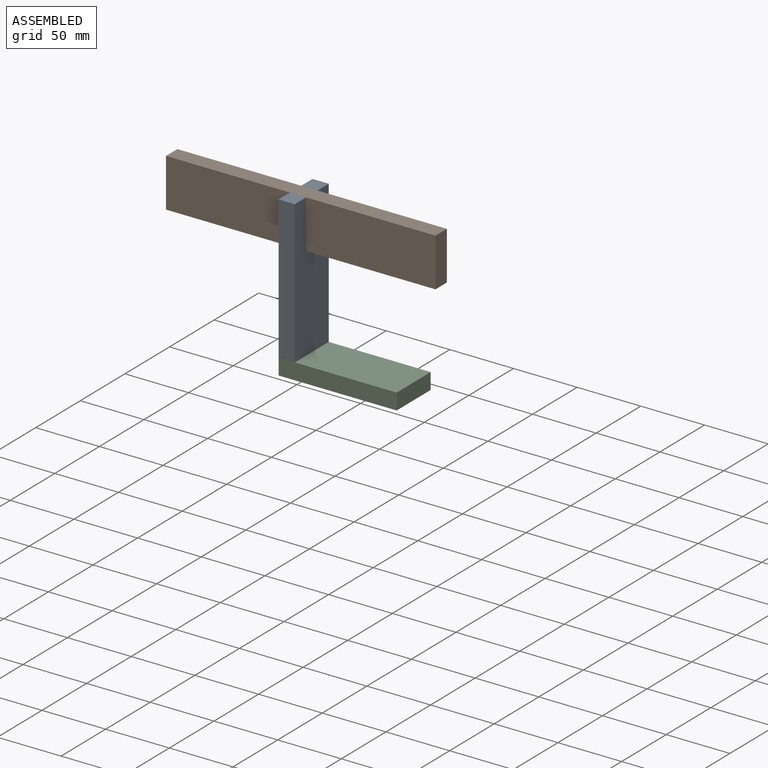
[diagram: assembled view]
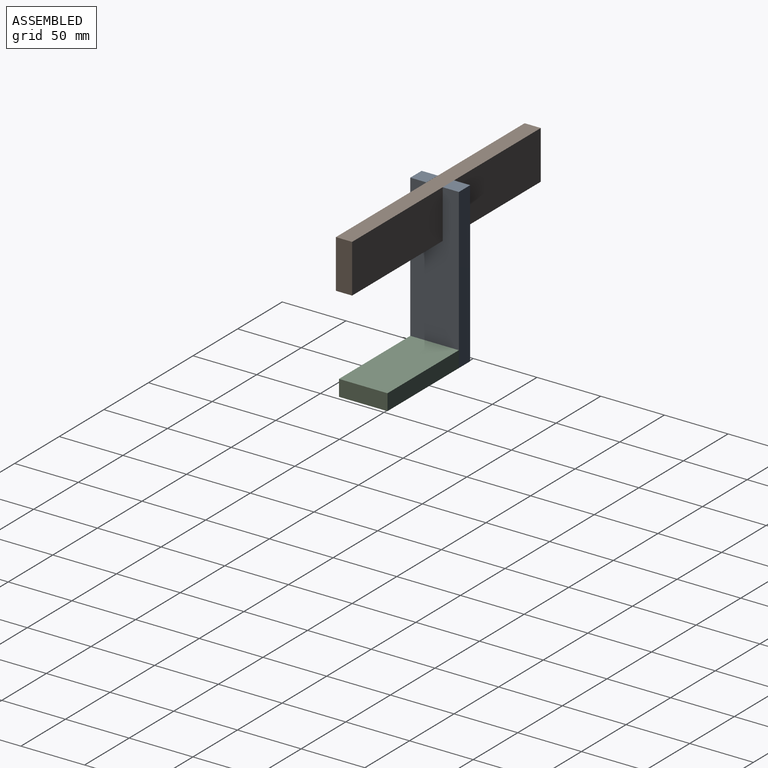
[diagram: assembled view, second angle]
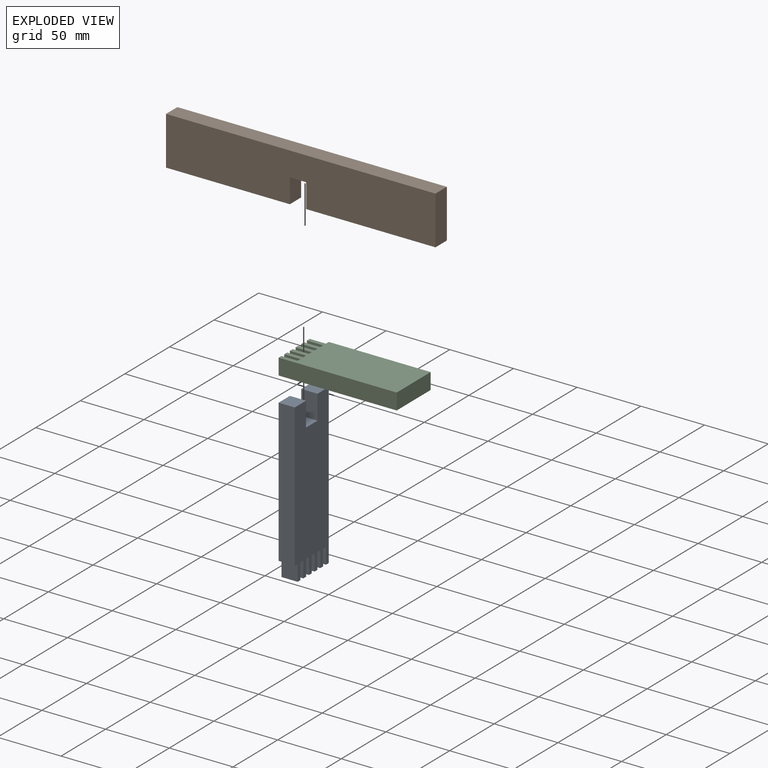
[diagram: exploded view]
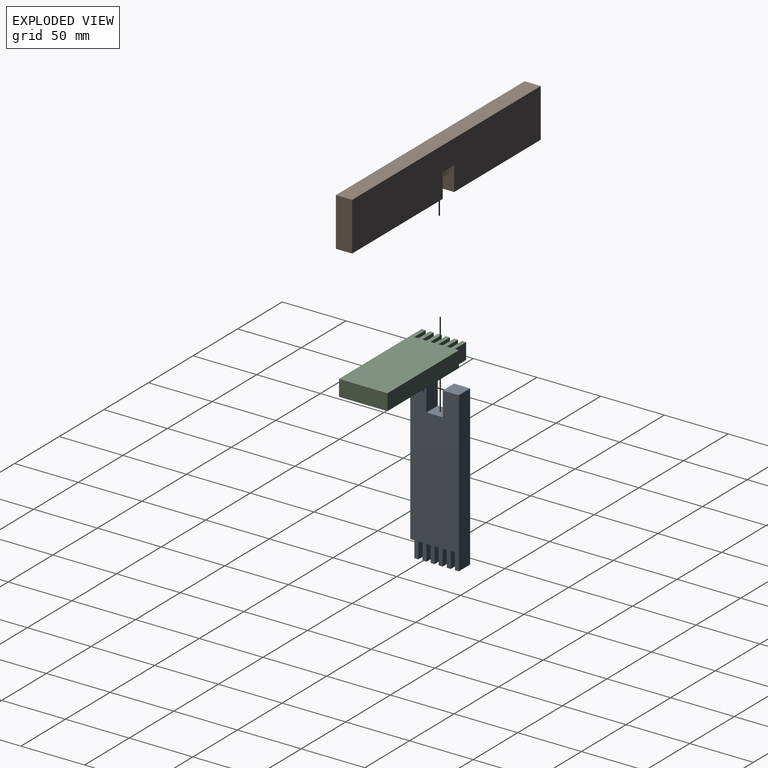
[diagram: exploded view, second angle]
ASSEMBLY  parts=3 mates=6
PART A: 32 faces, bbox 12.7x38.1x124.9 mm
  f0: plane 12.7x12.65mm, normal (0,0,1), area 160.6mm2, adj f6,f7,f8,f29
  f1: plane 12.7x3.12mm, normal (0,0,-1), area 39.7mm2, adj f7,f8,f24,f28
  f2: plane 12.7x3.12mm, normal (0,0,-1), area 39.7mm2, adj f7,f8,f21,f25
  f3: plane 12.7x3.12mm, normal (0,0,-1), area 39.7mm2, adj f7,f8,f18,f22
  f4: plane 12.7x3.12mm, normal (0,0,-1), area 39.7mm2, adj f7,f8,f15,f19
  f5: plane 12.7x3.12mm, normal (0,0,-1), area 39.7mm2, adj f7,f8,f12,f16
  f6: plane 112.24x12.7mm, normal (0,-1,0), area 1425.5mm2, adj f0,f7,f8,f27
  f7: plane 124.94x38.1mm, normal (1,0,0), area 4271.2mm2, adj f0,f1,f2,f3,f4,f5,f6,f9
  f8: plane 124.94x38.1mm, normal (-1,0,0), area 4271.2mm2, adj f0,f1,f2,f3,f4,f5,f6,f9
  f9: plane 12.7x3.12mm, normal (0,0,-1), area 39.7mm2, adj f7,f8,f10,f13
  f10: plane 124.94x12.7mm, normal (0,1,0), area 1586.8mm2, adj f7,f8,f9,f11
  f11: plane 12.7x12.67mm, normal (0,0,1), area 161mm2, adj f7,f8,f10,f31
  f12: plane 12.7x12.7mm, normal (0,1,0), area 161.3mm2, adj f5,f7,f8,f14
  f13: plane 12.7x12.7mm, normal (0,-1,0), area 161.3mm2, adj f7,f8,f9,f14
  f14: plane 12.7x3.23mm, normal (0,0,-1), area 41mm2, adj f7,f8,f12,f13
  f15: plane 12.7x12.7mm, normal (0,1,0), area 161.3mm2, adj f4,f7,f8,f17
  f16: plane 12.7x12.7mm, normal (0,-1,0), area 161.3mm2, adj f5,f7,f8,f17
  f17: plane 12.7x3.23mm, normal (0,0,-1), area 41mm2, adj f7,f8,f15,f16
  f18: plane 12.7x12.7mm, normal (0,1,0), area 161.3mm2, adj f3,f7,f8,f20
  f19: plane 12.7x12.7mm, normal (0,-1,0), area 161.3mm2, adj f4,f7,f8,f20
  f20: plane 12.7x3.23mm, normal (0,0,-1), area 41mm2, adj f7,f8,f18,f19
  f21: plane 12.7x12.7mm, normal (0,1,0), area 161.3mm2, adj f2,f7,f8,f23
  f22: plane 12.7x12.7mm, normal (0,-1,0), area 161.3mm2, adj f3,f7,f8,f23
  f23: plane 12.7x3.23mm, normal (0,0,-1), area 41mm2, adj f7,f8,f21,f22
  f24: plane 12.7x12.7mm, normal (0,1,0), area 161.3mm2, adj f1,f7,f8,f26
  f25: plane 12.7x12.7mm, normal (0,-1,0), area 161.3mm2, adj f2,f7,f8,f26
  f26: plane 12.7x3.23mm, normal (0,0,-1), area 41mm2, adj f7,f8,f24,f25
  f27: plane 12.7x3.23mm, normal (0,0,-1), area 41mm2, adj f6,f7,f8,f28
  f28: plane 12.7x12.7mm, normal (0,-1,0), area 161.3mm2, adj f1,f7,f8,f27
  f29: plane 19.05x12.7mm, normal (0,1,0), area 241.9mm2, adj f0,f7,f8,f30
  f30: plane 12.78x12.7mm, normal (0,0,1), area 162.3mm2, adj f7,f8,f29,f31
  f31: plane 19.05x12.7mm, normal (0,-1,0), area 241.9mm2, adj f7,f8,f11,f30
PART B: 10 faces, bbox 211.5x12.7x38.1 mm
  f0: plane 101.56x12.7mm, normal (0,0,-1), area 1289.8mm2, adj f4,f5,f6,f9
  f1: plane 211.53x12.7mm, normal (0,0,1), area 2686.5mm2, adj f2,f4,f5,f6
  f2: plane 38.1x12.7mm, normal (-1,0,0), area 483.9mm2, adj f1,f3,f5,f6
  f3: plane 97.2x12.7mm, normal (0,0,-1), area 1234.4mm2, adj f2,f5,f6,f8
  f4: plane 38.1x12.7mm, normal (1,0,0), area 483.9mm2, adj f0,f1,f5,f6
  f5: plane 211.53x38.1mm, normal (0,-1,0), area 7816mm2, adj f0,f1,f2,f3,f4,f7,f8,f9
  f6: plane 211.53x38.1mm, normal (0,1,0), area 7816mm2, adj f0,f1,f2,f3,f4,f7,f8,f9
  f7: plane 12.78x12.7mm, normal (0,0,-1), area 162.3mm2, adj f5,f6,f8,f9
  f8: plane 19.05x12.7mm, normal (1,0,0), area 241.9mm2, adj f3,f5,f6,f7
  f9: plane 19.05x12.7mm, normal (-1,0,0), area 241.9mm2, adj f0,f5,f6,f7
PART C: 28 faces, bbox 92.7x38.1x12.7 mm
  f0: plane 12.7x3.12mm, normal (-1,0,0), area 39.7mm2, adj f9,f10,f22,f27
  f1: plane 12.7x3.12mm, normal (-1,0,0), area 39.7mm2, adj f9,f10,f19,f24
  f2: plane 12.7x3.12mm, normal (-1,0,0), area 39.7mm2, adj f9,f10,f16,f21
  f3: plane 12.7x3.12mm, normal (-1,0,0), area 39.7mm2, adj f9,f10,f13,f18
  f4: plane 12.7x3.12mm, normal (-1,0,0), area 39.7mm2, adj f9,f10,f11,f15
  f5: plane 80.02x12.7mm, normal (0,1,0), area 1016.2mm2, adj f8,f9,f10,f12
  f6: plane 12.7x3.12mm, normal (-1,0,0), area 39.7mm2, adj f7,f9,f10,f25
  f7: plane 92.72x12.7mm, normal (0,-1,0), area 1177.5mm2, adj f6,f8,f9,f10
  f8: plane 38.1x12.7mm, normal (1,0,0), area 483.9mm2, adj f5,f7,f9,f10
  f9: plane 92.72x38.1mm, normal (0,0,1), area 3286.7mm2, adj f0,f1,f2,f3,f4,f5,f6,f7
  f10: plane 92.72x38.1mm, normal (0,0,-1), area 3286.7mm2, adj f0,f1,f2,f3,f4,f5,f6,f7
  f11: plane 12.7x12.7mm, normal (0,1,0), area 161.3mm2, adj f4,f9,f10,f12
  f12: plane 12.7x3.23mm, normal (-1,0,0), area 41mm2, adj f5,f9,f10,f11
  f13: plane 12.7x12.7mm, normal (0,1,0), area 161.3mm2, adj f3,f9,f10,f14
  f14: plane 12.7x3.23mm, normal (-1,0,0), area 41mm2, adj f9,f10,f13,f15
  f15: plane 12.7x12.7mm, normal (0,-1,0), area 161.3mm2, adj f4,f9,f10,f14
  f16: plane 12.7x12.7mm, normal (0,1,0), area 161.3mm2, adj f2,f9,f10,f17
  f17: plane 12.7x3.23mm, normal (-1,0,0), area 41mm2, adj f9,f10,f16,f18
  f18: plane 12.7x12.7mm, normal (0,-1,0), area 161.3mm2, adj f3,f9,f10,f17
  f19: plane 12.7x12.7mm, normal (0,1,0), area 161.3mm2, adj f1,f9,f10,f20
  f20: plane 12.7x3.23mm, normal (-1,0,0), area 41mm2, adj f9,f10,f19,f21
  f21: plane 12.7x12.7mm, normal (0,-1,0), area 161.3mm2, adj f2,f9,f10,f20
  f22: plane 12.7x12.7mm, normal (0,1,0), area 161.3mm2, adj f0,f9,f10,f23
  f23: plane 12.7x3.23mm, normal (-1,0,0), area 41mm2, adj f9,f10,f22,f24
  f24: plane 12.7x12.7mm, normal (0,-1,0), area 161.3mm2, adj f1,f9,f10,f23
  f25: plane 12.7x12.7mm, normal (0,1,0), area 161.3mm2, adj f6,f9,f10,f26
  f26: plane 12.7x3.23mm, normal (-1,0,0), area 41mm2, adj f9,f10,f25,f27
  f27: plane 12.7x12.7mm, normal (0,-1,0), area 161.3mm2, adj f0,f9,f10,f26
PLACE A t=(-85.54,-14.17,-10.65)mm
PLACE B t=(-218.16,-79.9,-22.72)mm
PLACE C t=(-85.54,-105.33,25.39)mm
MATE planar B.f9 <-> A.f7  axis (-1,0,0) through (-72.84,-86.25,121.76)mm
MATE planar C.f4 <-> A.f8  axis (-1,0,0) through (-85.54,-72.01,31.74)mm
MATE planar B.f6 <-> A.f31  axis (0,1,0) through (-76.98,-79.9,131.58)mm
MATE planar C.f10 <-> A.f5  axis (0,0,-1) through (-72.84,-75.19,25.39)mm
MATE planar B.f7 <-> A.f30  axis (0,0,-1) through (-85.62,-86.25,131.29)mm
MATE planar A.f10 <-> C.f5  axis (0,1,0) through (-79.19,-67.23,87.86)mm
